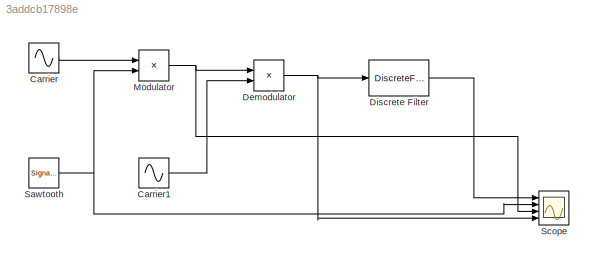
MODEL slx_3addcb17898e
KIND model
CONFIG AbsTol = auto
CONFIG EnableMultiTasking = off
CONFIG FixedStep = auto
CONFIG MaxStep = 0.005
CONFIG MinStep = auto
CONFIG RelTol = 1e-3
CONFIG SampleTimeConstraint = Unconstrained
CONFIG Solver = ode45
CONFIG SolverName = ode45
CONFIG StartTime = 0.0
CONFIG StopTime = 10.0
BLOCK [Sin] Carrier
  Frequency = 1000
  Ports = [0, 1]
  SampleTime = 0
BLOCK [Sin] Carrier1
  Frequency = 1000
  Ports = [0, 1]
  SampleTime = 0.005
BLOCK [Product] Demodulator
  InputSameDT = off
  OutDataTypeStr = Inherit: Inherit via internal rule
  Ports = [2, 1]
  RndMeth = Floor
  SaturateOnIntegerOverflow = off
BLOCK [DiscreteFilter] Discrete Filter
  Denominator = [1 -1.6 0.7]
  InputPortMap = u0
  Numerator = [0.04 0.08 0.04]
  Ports = [1, 1]
  SampleTime = 0.005
BLOCK [Product] Modulator
  InputSameDT = off
  OutDataTypeStr = Inherit: Inherit via internal rule
  Ports = [2, 1]
  RndMeth = Floor
  SaturateOnIntegerOverflow = off
BLOCK [SignalGenerator] Sawtooth
  Ports = [0, 1]
  WaveForm = sawtooth
BLOCK [Scope] Scope
  Floating = off
  NumInputPorts = 4
  Ports = [4]
  ScopeSpecificationString = Simulink.scopes.TimeScopeBlockCfg('CurrentConfiguration', extmgr.ConfigurationSet(extmgr.Configuration('Core','General UI',true),extmgr.Configuration('Core','Source UI',true),extmgr.Configuration('Sources','WiredSimulink',true),extmgr.Configuration('Visuals','Time Domain',true,'SerializedDisplays',{struct('MinYLimReal','-0.99464','MaxYLimReal','1.21187','YLabelReal','','MinYLimMag','0.00000','MaxY...<+3379ch>
LINE Carrier1:1 -> Demodulator:2
LINE Carrier:1 -> Modulator:1
NET Demodulator:1 -> Discrete Filter:1, Scope:4
LINE Discrete Filter:1 -> Scope:1
NET Modulator:1 -> Demodulator:1, Scope:3
NET Sawtooth:1 -> Modulator:2, Scope:2
note: NET lines group one-source signal fan-out (src -> all destinations, sorted); 1:1 wires keep LINE
